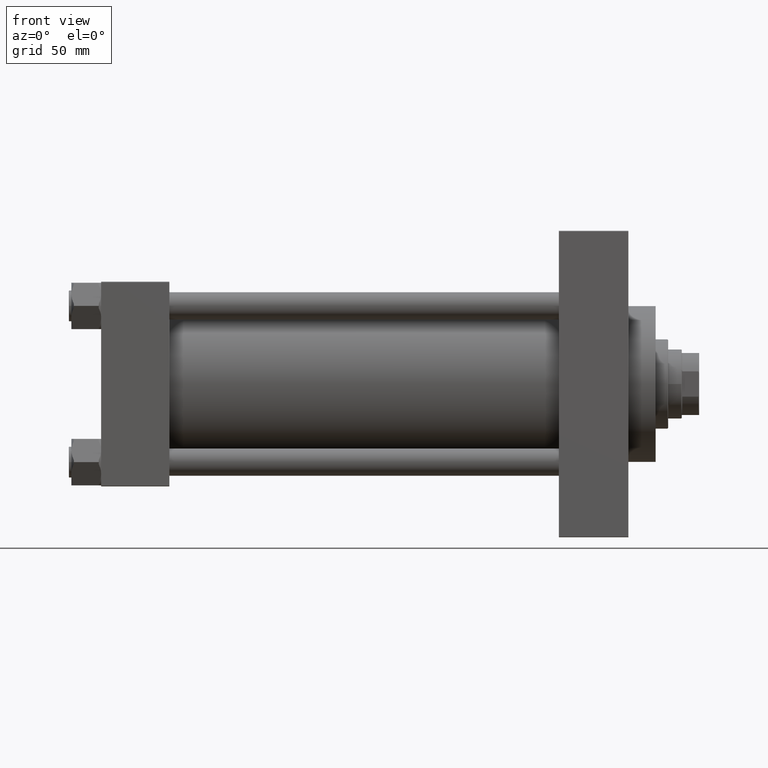
[diagram: clean part render]
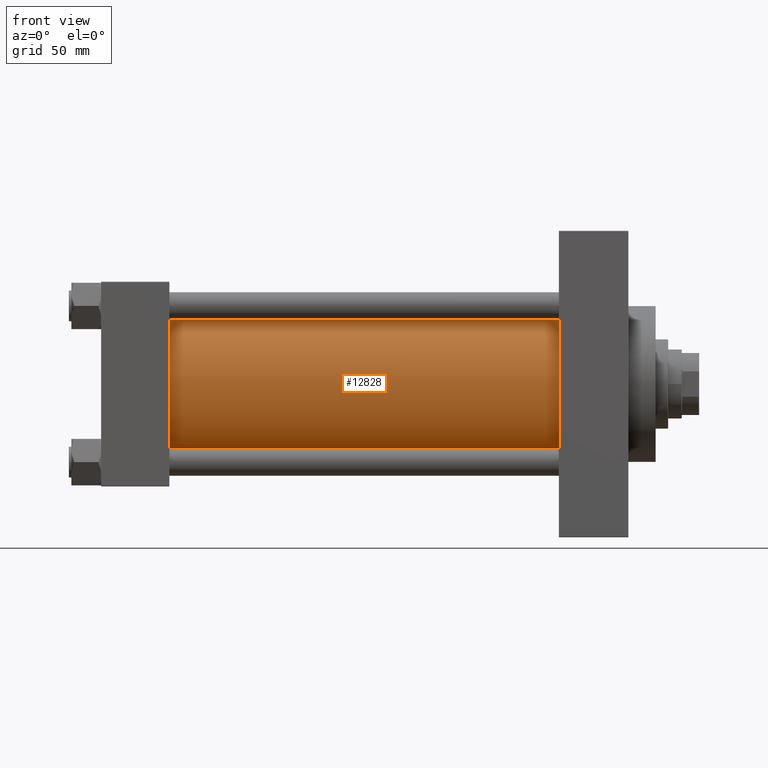
[diagram: same view with one face highlighted and labeled with its STEP entity id]
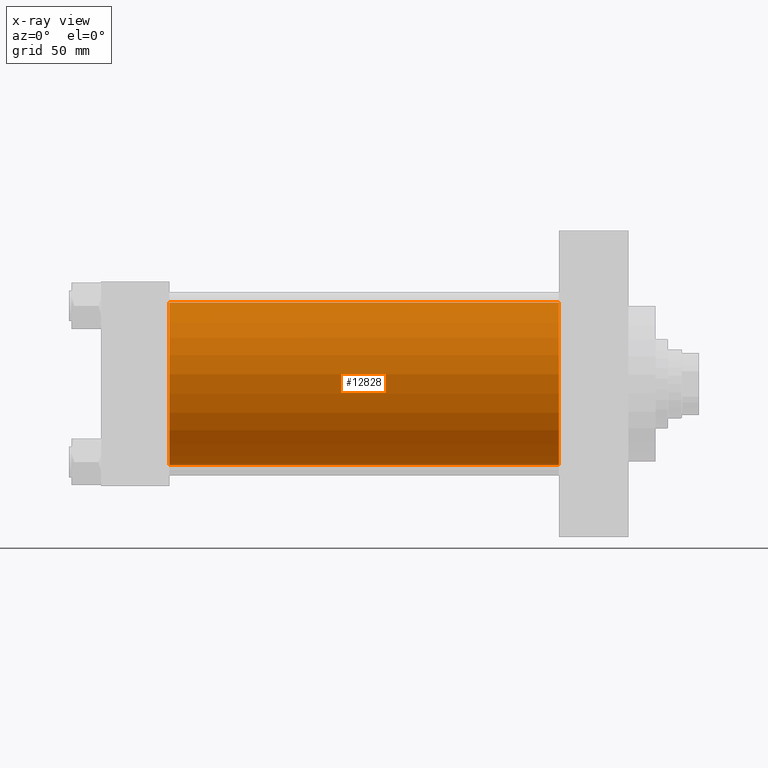
[diagram: x-ray of the same camera — body ghosted, the highlighted face saturated]
A machine part, front view. The second image highlights one B-rep face of the part: STEP entity #12828.
The next image is the same camera in x-ray: the body ghosted, the highlighted face saturated — about 2% of this face is hidden behind the body in this view.
In plain terms, the highlighted cylindrical surface (partial cylindrical patch) has radius 65.5 mm, axis along (-1, -0, -0).
Its self-contained STEP definition (entity closure, byte-faithful):
#2645 = VECTOR ( 'NONE', #20561, 1000.000000000000000 ) ;
#2854 = VERTEX_POINT ( 'NONE', #38833 ) ;
#4524 = DIRECTION ( 'NONE',  ( 0.000000000000000000, 0.000000000000000000, 1.000000000000000000 ) ) ;
#5299 = EDGE_CURVE ( 'NONE', #2854, #17010, #19030, .T. ) ;
#5494 = DIRECTION ( 'NONE',  ( 1.000000000000000000, 0.000000000000000000, 0.000000000000000000 ) ) ;
#8153 = DIRECTION ( 'NONE',  ( 1.000000000000000000, -0.000000000000000000, -0.000000000000000000 ) ) ;
#9761 = CIRCLE ( 'NONE', #12837, 65.50000000000001421 ) ;
#10676 = EDGE_CURVE ( 'NONE', #13853, #13985, #13308, .T. ) ;
#12828 = ADVANCED_FACE ( 'NONE', ( #13740 ), #36002, .T. ) ;
#12837 = AXIS2_PLACEMENT_3D ( 'NONE', #24096, #5494, #41543 ) ;
#13183 = CARTESIAN_POINT ( 'NONE',  ( 54.99999999999999289, -2.602085213965210642E-15, 65.50000000000001421 ) ) ;
#13308 = LINE ( 'NONE', #21497, #2645 ) ;
#13647 = CIRCLE ( 'NONE', #41472, 65.50000000000001421 ) ;
#13740 = FACE_OUTER_BOUND ( 'NONE', #29340, .T. ) ;
#13853 = VERTEX_POINT ( 'NONE', #14902 ) ;
#13985 = VERTEX_POINT ( 'NONE', #13183 ) ;
#14902 = CARTESIAN_POINT ( 'NONE',  ( 369.0000000000000000, -2.602085213965210642E-15, 65.50000000000001421 ) ) ;
#16892 = DIRECTION ( 'NONE',  ( -1.000000000000000000, -0.000000000000000000, -0.000000000000000000 ) ) ;
#17010 = VERTEX_POINT ( 'NONE', #45402 ) ;
#19030 = LINE ( 'NONE', #33328, #38777 ) ;
#20561 = DIRECTION ( 'NONE',  ( -1.000000000000000000, -0.000000000000000000, -0.000000000000000000 ) ) ;
#21497 = CARTESIAN_POINT ( 'NONE',  ( 369.0000000000000000, -2.602085213965210642E-15, 65.50000000000001421 ) ) ;
#24096 = CARTESIAN_POINT ( 'NONE',  ( 369.0000000000000000, -2.602085213965210642E-15, 0.000000000000000000 ) ) ;
#27312 = ORIENTED_EDGE ( 'NONE', *, *, #28212, .F. ) ;
#28029 = DIRECTION ( 'NONE',  ( 0.000000000000000000, 0.000000000000000000, 1.000000000000000000 ) ) ;
#28212 = EDGE_CURVE ( 'NONE', #13853, #2854, #9761, .T. ) ;
#29097 = ORIENTED_EDGE ( 'NONE', *, *, #5299, .F. ) ;
#29340 = EDGE_LOOP ( 'NONE', ( #29097, #27312, #33248, #29459 ) ) ;
#29459 = ORIENTED_EDGE ( 'NONE', *, *, #32503, .T. ) ;
#30484 = AXIS2_PLACEMENT_3D ( 'NONE', #46667, #16892, #28029 ) ;
#32503 = EDGE_CURVE ( 'NONE', #13985, #17010, #13647, .T. ) ;
#33248 = ORIENTED_EDGE ( 'NONE', *, *, #10676, .T. ) ;
#33328 = CARTESIAN_POINT ( 'NONE',  ( 369.0000000000000000, 5.419351320449954973E-15, -65.50000000000001421 ) ) ;
#34271 = CARTESIAN_POINT ( 'NONE',  ( 54.99999999999999289, -2.602085213965210642E-15, 0.000000000000000000 ) ) ;
#36002 = CYLINDRICAL_SURFACE ( 'NONE', #30484, 65.50000000000001421 ) ;
#37209 = DIRECTION ( 'NONE',  ( -1.000000000000000000, -0.000000000000000000, -0.000000000000000000 ) ) ;
#38777 = VECTOR ( 'NONE', #37209, 1000.000000000000000 ) ;
#38833 = CARTESIAN_POINT ( 'NONE',  ( 369.0000000000000000, 5.419351320449954973E-15, -65.50000000000001421 ) ) ;
#41472 = AXIS2_PLACEMENT_3D ( 'NONE', #34271, #8153, #4524 ) ;
#41543 = DIRECTION ( 'NONE',  ( 0.000000000000000000, 0.000000000000000000, -1.000000000000000000 ) ) ;
#45402 = CARTESIAN_POINT ( 'NONE',  ( 54.99999999999999289, 5.419351320449954973E-15, -65.50000000000001421 ) ) ;
#46667 = CARTESIAN_POINT ( 'NONE',  ( 369.0000000000000000, -2.602085213965210642E-15, 0.000000000000000000 ) ) ;